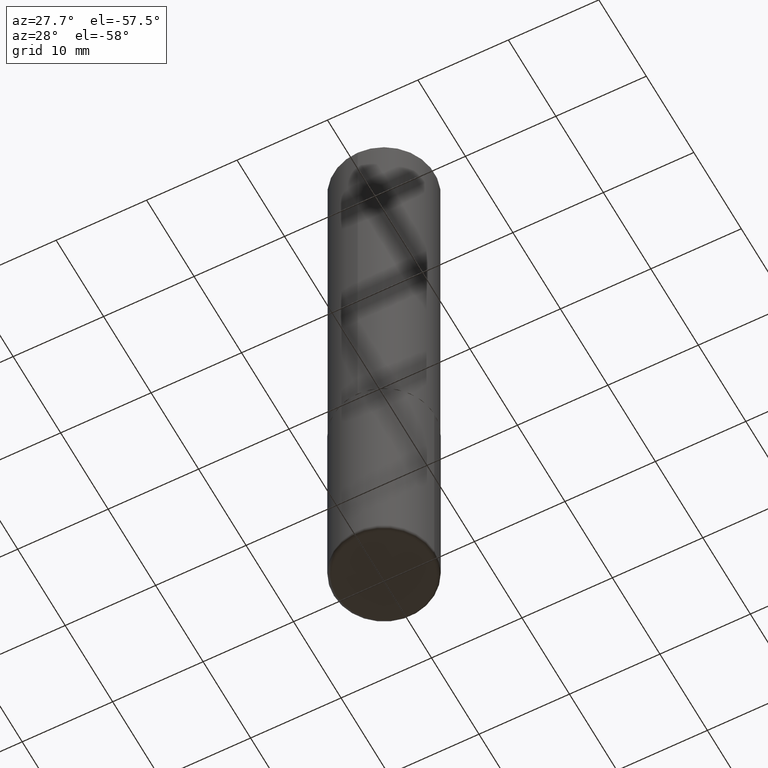
[diagram: clean part render]
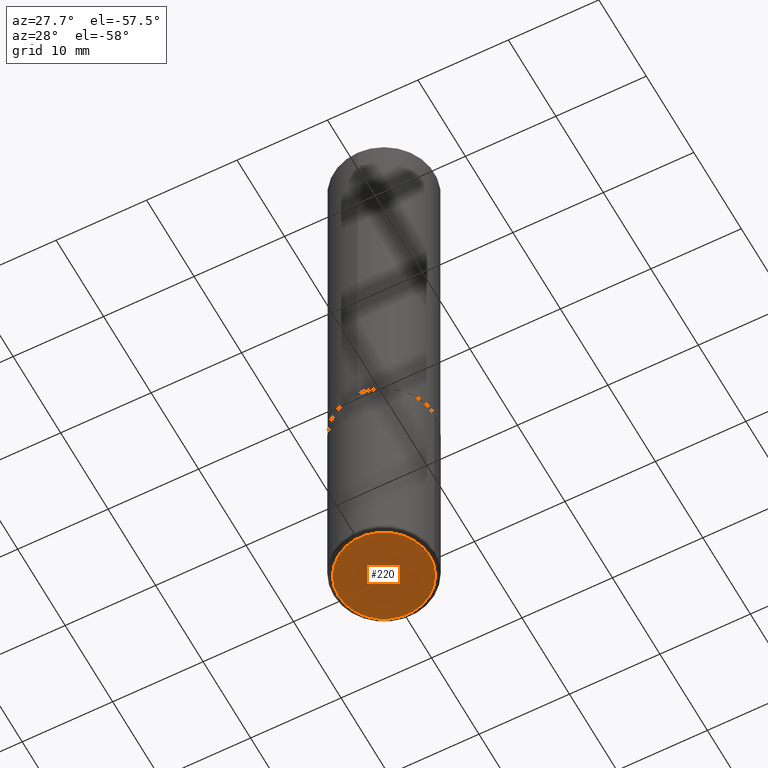
[diagram: same view with one face highlighted and labeled with its STEP entity id]
A machine part, auxiliary view. The second image highlights one B-rep face of the part: STEP entity #220.
In plain terms, the highlighted planar face has unit normal (0, -0, -1).
Its self-contained STEP definition (entity closure, byte-faithful):
#10 = ORIENTED_EDGE ( 'NONE', *, *, #148, .F. ) ;
#23 = CIRCLE ( 'NONE', #53, 0.1987500000000000100 ) ;
#28 = VERTEX_POINT ( 'NONE', #252 ) ;
#29 = FACE_OUTER_BOUND ( 'NONE', #384, .T. ) ;
#30 = AXIS2_PLACEMENT_3D ( 'NONE', #376, #62, #312 ) ;
#32 = CIRCLE ( 'NONE', #71, 0.1987500000000000100 ) ;
#41 = DIRECTION ( 'NONE',  ( 1.000000000000000000, -6.982962677686265133E-15, 0.000000000000000000 ) ) ;
#42 = ORIENTED_EDGE ( 'NONE', *, *, #415, .F. ) ;
#53 = AXIS2_PLACEMENT_3D ( 'NONE', #237, #203, #41 ) ;
#62 = DIRECTION ( 'NONE',  ( 2.438088387897960049E-29, -3.491481338843145188E-15, -1.000000000000000000 ) ) ;
#68 = VERTEX_POINT ( 'NONE', #353 ) ;
#71 = AXIS2_PLACEMENT_3D ( 'NONE', #230, #321, #347 ) ;
#148 = EDGE_CURVE ( 'NONE', #28, #68, #23, .T. ) ;
#203 = DIRECTION ( 'NONE',  ( -2.445468806185136597E-29, 3.491481338843145583E-15, 1.000000000000000000 ) ) ;
#220 = ADVANCED_FACE ( 'NONE', ( #29 ), #318, .T. ) ;
#230 = CARTESIAN_POINT ( 'NONE',  ( 6.725039217009124520E-29, -9.601573681818649859E-15, -2.750000000000000000 ) ) ;
#237 = CARTESIAN_POINT ( 'NONE',  ( 6.725039217009124520E-29, -9.601573681818649859E-15, -2.750000000000000000 ) ) ;
#252 = CARTESIAN_POINT ( 'NONE',  ( -0.1987500000000000100, -8.083400907531010713E-15, -2.750000000000000000 ) ) ;
#312 = DIRECTION ( 'NONE',  ( -1.000000000000000000, 6.982962677686265922E-15, -4.876176775795935793E-29 ) ) ;
#318 = PLANE ( 'NONE',  #30 ) ;
#321 = DIRECTION ( 'NONE',  ( -2.445468806185136597E-29, 3.491481338843145583E-15, 1.000000000000000000 ) ) ;
#347 = DIRECTION ( 'NONE',  ( 1.000000000000000000, -6.982962677686265133E-15, 0.000000000000000000 ) ) ;
#353 = CARTESIAN_POINT ( 'NONE',  ( 0.1987500000000000100, -1.098943751400879489E-14, -2.750000000000000000 ) ) ;
#376 = CARTESIAN_POINT ( 'NONE',  ( 6.725039217009124520E-29, -9.601573681818649859E-15, -2.750000000000000000 ) ) ;
#384 = EDGE_LOOP ( 'NONE', ( #42, #10 ) ) ;
#415 = EDGE_CURVE ( 'NONE', #68, #28, #32, .T. ) ;